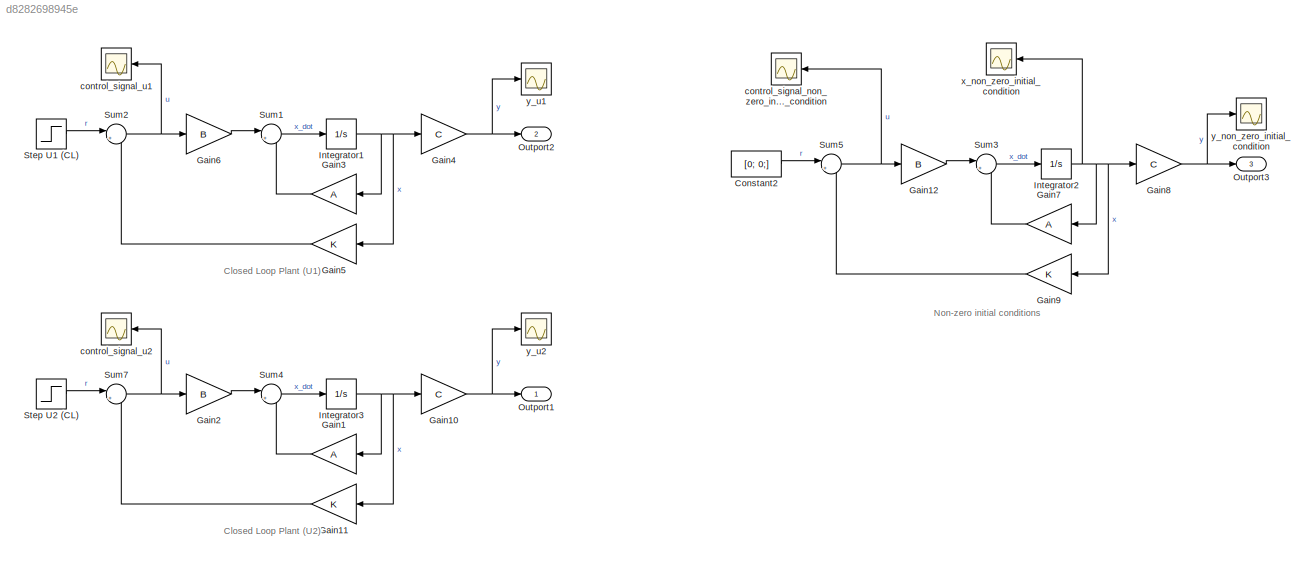
MODEL slx_d8282698945e
KIND model
CONFIG AbsTol = auto
CONFIG EnableMultiTasking = off
CONFIG FixedStep = auto
CONFIG MaxStep = auto
CONFIG MinStep = auto
CONFIG RelTol = 1e-3
CONFIG SampleTimeConstraint = Unconstrained
CONFIG SolverName = VariableStepAuto
CONFIG StartTime = 0.0
CONFIG StopTime = 2
BLOCK [Constant] Constant2
  Value = [0; 0;]
BLOCK [Gain] Gain1
  Gain = A
  Multiplication = Matrix(K*u)
BLOCK [Gain] Gain10
  Gain = C
  Multiplication = Matrix(K*u)
BLOCK [Gain] Gain11
  Gain = K
  Multiplication = Matrix(K*u)
BLOCK [Gain] Gain12
  Gain = B
  Multiplication = Matrix(K*u)
BLOCK [Gain] Gain2
  Gain = B
  Multiplication = Matrix(K*u)
BLOCK [Gain] Gain3
  Gain = A
  Multiplication = Matrix(K*u)
BLOCK [Gain] Gain4
  Gain = C
  Multiplication = Matrix(K*u)
BLOCK [Gain] Gain5
  Gain = K
  Multiplication = Matrix(K*u)
BLOCK [Gain] Gain6
  Gain = B
  Multiplication = Matrix(K*u)
BLOCK [Gain] Gain7
  Gain = A
  Multiplication = Matrix(K*u)
BLOCK [Gain] Gain8
  Gain = C
  Multiplication = Matrix(K*u)
BLOCK [Gain] Gain9
  Gain = K
  Multiplication = Matrix(K*u)
BLOCK [Integrator] Integrator1
BLOCK [Integrator] Integrator2
  InitialCondition = x_0
BLOCK [Integrator] Integrator3
BLOCK [Outport] Outport1
BLOCK [Outport] Outport2
  Port = 2
BLOCK [Outport] Outport3
  Port = 3
BLOCK [Step] Step U1 (CL)
  After = [1; 0;];
  Before = [0; 0;];
  SampleTime = 0
  Time = 0
BLOCK [Step] Step U2 (CL)
  After = [0; 1;];
  Before = [0; 0;];
  SampleTime = 0
  Time = 0
BLOCK [Sum] Sum1
  Inputs = |++
BLOCK [Sum] Sum2
  Inputs = |+-
BLOCK [Sum] Sum3
  Inputs = |++
BLOCK [Sum] Sum4
  Inputs = |++
BLOCK [Sum] Sum5
  Inputs = |+-
BLOCK [Sum] Sum7
  Inputs = |+-
BLOCK [Scope] control_signal_non_zero_initial_condition
  Floating = off
  NumInputPorts = 1
  ScopeSpecificationString = Simulink.scopes.TimeScopeBlockCfg('CurrentConfiguration', extmgr.ConfigurationSet(extmgr.Configuration('Core','General UI',true),extmgr.Configuration('Core','Source UI',true),extmgr.Configuration('Sources','WiredSimulink',true,'DataLoggingVariableName','ScopeData5'),extmgr.Configuration('Visuals','Time Domain',true,'SerializedDisplays',{struct('MinYLimReal','-34.28545','MaxYLimReal','30.83052','YL...<+1889ch>
BLOCK [Scope] control_signal_u1
  Floating = off
  NumInputPorts = 1
  ScopeSpecificationString = Simulink.scopes.TimeScopeBlockCfg('CurrentConfiguration', extmgr.ConfigurationSet(extmgr.Configuration('Core','General UI',true),extmgr.Configuration('Core','Source UI',true),extmgr.Configuration('Sources','WiredSimulink',true,'DataLoggingVariableName','ScopeData2'),extmgr.Configuration('Visuals','Time Domain',true,'SerializedDisplays',{struct('MinYLimReal','-1.55091','MaxYLimReal','1.28343','YLab...<+1882ch>
BLOCK [Scope] control_signal_u2
  Floating = off
  NumInputPorts = 1
  ScopeSpecificationString = Simulink.scopes.TimeScopeBlockCfg('CurrentConfiguration', extmgr.ConfigurationSet(extmgr.Configuration('Core','General UI',true),extmgr.Configuration('Core','Source UI',true),extmgr.Configuration('Sources','WiredSimulink',true,'DataLoggingVariableName','ScopeData4'),extmgr.Configuration('Visuals','Time Domain',true,'SerializedDisplays',{struct('MinYLimReal','-0.23954','MaxYLimReal','1.13773','YLab...<+1882ch>
BLOCK [Scope] x_non_zero_initial_condition
  Floating = off
  NumInputPorts = 1
  ScopeSpecificationString = Simulink.scopes.TimeScopeBlockCfg('CurrentConfiguration', extmgr.ConfigurationSet(extmgr.Configuration('Core','General UI',true),extmgr.Configuration('Core','Source UI',true),extmgr.Configuration('Sources','WiredSimulink',true,'DataLoggingVariableName','ScopeData3'),extmgr.Configuration('Visuals','Time Domain',true,'SerializedDisplays',{struct('MinYLimReal','-1.22115','MaxYLimReal','0.69124','YLab...<+1893ch>
BLOCK [Scope] y_non_zero_initial_condition
  Floating = off
  NumInputPorts = 1
  ScopeSpecificationString = Simulink.scopes.TimeScopeBlockCfg('CurrentConfiguration', extmgr.ConfigurationSet(extmgr.Configuration('Core','General UI',true),extmgr.Configuration('Core','Source UI',true),extmgr.Configuration('Sources','WiredSimulink',true,'DataLoggingVariableName','ScopeData1'),extmgr.Configuration('Visuals','Time Domain',true,'SerializedDisplays',{struct('MinYLimReal','-1.63651','MaxYLimReal','0.52597','YLab...<+1414ch>
BLOCK [Scope] y_u1
  Floating = off
  NumInputPorts = 1
  ScopeSpecificationString = Simulink.scopes.TimeScopeBlockCfg('CurrentConfiguration', extmgr.ConfigurationSet(extmgr.Configuration('Core','General UI',true),extmgr.Configuration('Core','Source UI',true),extmgr.Configuration('Sources','WiredSimulink',true,'DataLoggingVariableName','ScopeData6'),extmgr.Configuration('Visuals','Time Domain',true,'SerializedDisplays',{struct('MinYLimReal','-0.02913','MaxYLimReal','0.05441','YLab...<+1882ch>
BLOCK [Scope] y_u2
  Floating = off
  NumInputPorts = 1
  ScopeSpecificationString = Simulink.scopes.TimeScopeBlockCfg('CurrentConfiguration', extmgr.ConfigurationSet(extmgr.Configuration('Core','General UI',true),extmgr.Configuration('Core','Source UI',true),extmgr.Configuration('Sources','WiredSimulink',true,'DataLoggingVariableName','ScopeData1'),extmgr.Configuration('Visuals','Time Domain',true,'SerializedDisplays',{struct('MinYLimReal','-0.00328','MaxYLimReal','0.02947','YLab...<+1882ch>
ANNOTATION (root): Closed Loop Plant (U1)
ANNOTATION (root): Closed Loop Plant (U2)
ANNOTATION (root): Non-zero initial conditions
LINE Constant2:1 -> Sum5:1
NET Gain10:1 -> Outport1:1, y_u2:1
LINE Gain11:1 -> Sum7:2
LINE Gain12:1 -> Sum3:1
LINE Gain1:1 -> Sum4:2
LINE Gain2:1 -> Sum4:1
LINE Gain3:1 -> Sum1:2
NET Gain4:1 -> Outport2:1, y_u1:1
LINE Gain5:1 -> Sum2:2
LINE Gain6:1 -> Sum1:1
LINE Gain7:1 -> Sum3:2
NET Gain8:1 -> Outport3:1, y_non_zero_initial_condition:1
LINE Gain9:1 -> Sum5:2
NET Integrator1:1 -> Gain3:1, Gain4:1, Gain5:1
NET Integrator2:1 -> Gain7:1, Gain8:1, Gain9:1, x_non_zero_initial_condition:1
NET Integrator3:1 -> Gain10:1, Gain11:1, Gain1:1
LINE Step U1 (CL):1 -> Sum2:1
LINE Step U2 (CL):1 -> Sum7:1
LINE Sum1:1 -> Integrator1:1
NET Sum2:1 -> Gain6:1, control_signal_u1:1
LINE Sum3:1 -> Integrator2:1
LINE Sum4:1 -> Integrator3:1
NET Sum5:1 -> Gain12:1, control_signal_non_zero_initial_condition:1
NET Sum7:1 -> Gain2:1, control_signal_u2:1
note: NET lines group one-source signal fan-out (src -> all destinations, sorted); 1:1 wires keep LINE
